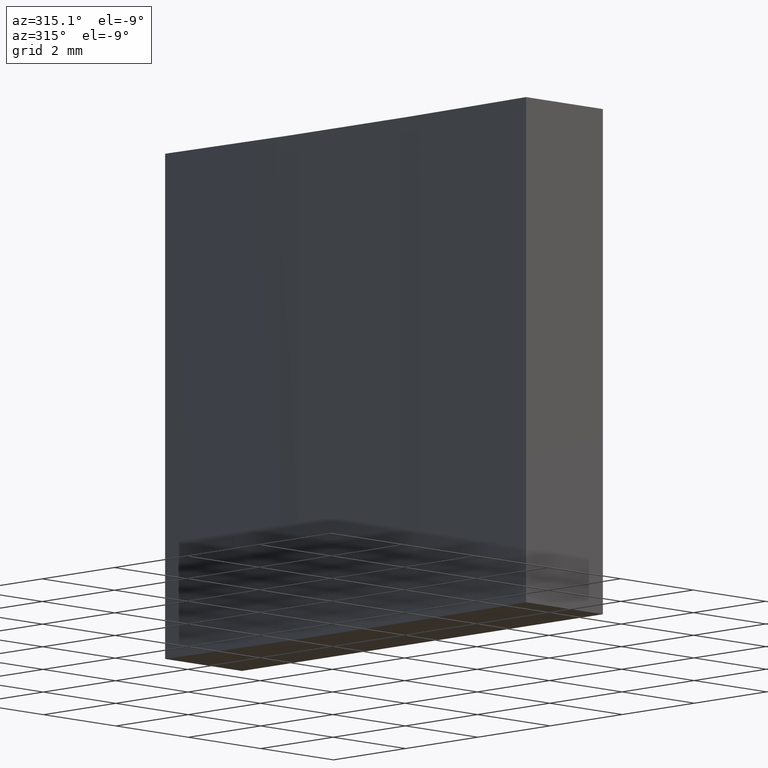
[diagram: clean part render]
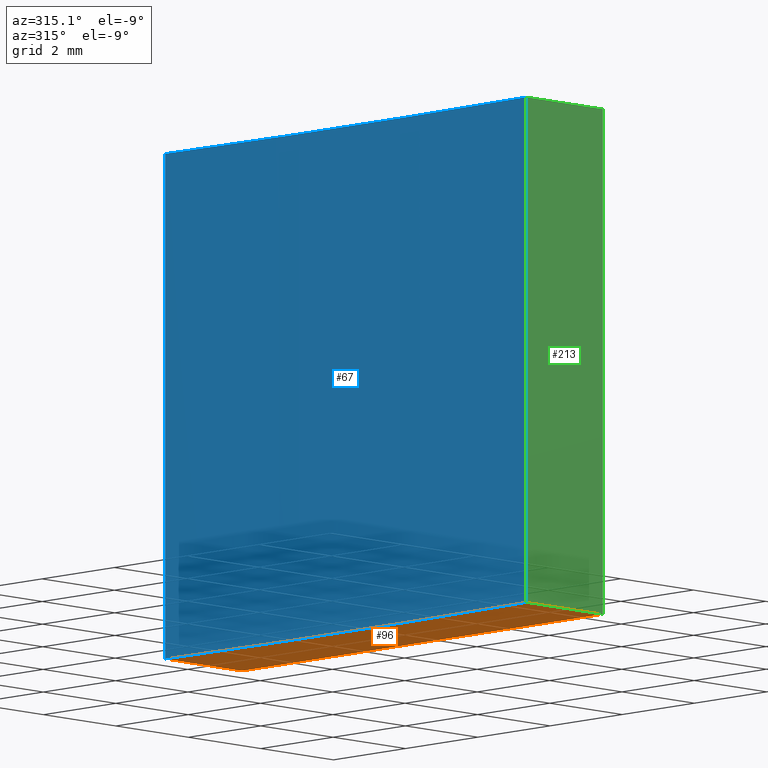
[diagram: same view with three faces highlighted in distinct colors, each labeled with its STEP entity id]
A machine part, auxiliary view with three faces highlighted in distinct colors.
Their STEP definitions:

[orange] entity #96 — the highlighted planar face has unit normal (0, 0, 1).
#2 = CARTESIAN_POINT ( 'NONE',  ( -45.55479142152581318, 13.35260716345252341, 0.000000000000000000 ) ) ;
#5 = CARTESIAN_POINT ( 'NONE',  ( 57.72424807826814686, 18.35260716345252519, 0.000000000000000000 ) ) ;
#16 = CARTESIAN_POINT ( 'NONE',  ( -45.55479142152581318, 13.35260716345252341, 0.000000000000000000 ) ) ;
#40 = DIRECTION ( 'NONE',  ( 1.000000000000000000, 0.000000000000000000, -0.000000000000000000 ) ) ;
#46 = ORIENTED_EDGE ( 'NONE', *, *, #173, .F. ) ;
#52 = PLANE ( 'NONE',  #83 ) ;
#55 = CARTESIAN_POINT ( 'NONE',  ( 57.72424807826814686, 8.352607163452523409, 0.000000000000000000 ) ) ;
#57 = CARTESIAN_POINT ( 'NONE',  ( 57.72424807826814686, 8.352607163452523409, 0.000000000000000000 ) ) ;
#77 = LINE ( 'NONE', #5, #138 ) ;
#78 = EDGE_CURVE ( 'NONE', #99, #80, #146, .T. ) ;
#80 = VERTEX_POINT ( 'NONE', #221 ) ;
#83 = AXIS2_PLACEMENT_3D ( 'NONE', #16, #108, #40 ) ;
#92 = CARTESIAN_POINT ( 'NONE',  ( 59.84424807826814430, 18.35260716345252519, 0.000000000000000000 ) ) ;
#94 = LINE ( 'NONE', #55, #154 ) ;
#96 = ADVANCED_FACE ( 'NONE', ( #204 ), #52, .F. ) ;
#97 = CARTESIAN_POINT ( 'NONE',  ( 59.84424807826814430, 8.352607163452523409, 0.000000000000000000 ) ) ;
#99 = VERTEX_POINT ( 'NONE', #97 ) ;
#101 = CARTESIAN_POINT ( 'NONE',  ( 57.72424807826814686, 18.35260716345252519, 0.000000000000000000 ) ) ;
#108 = DIRECTION ( 'NONE',  ( 0.000000000000000000, 0.000000000000000000, 1.000000000000000000 ) ) ;
#114 = VERTEX_POINT ( 'NONE', #57 ) ;
#115 = ORIENTED_EDGE ( 'NONE', *, *, #219, .F. ) ;
#129 = CIRCLE ( 'NONE', #171, 103.4000000000000057 ) ;
#136 = VERTEX_POINT ( 'NONE', #101 ) ;
#138 = VECTOR ( 'NONE', #225, 1000.000000000000000 ) ;
#139 = ORIENTED_EDGE ( 'NONE', *, *, #78, .F. ) ;
#146 = LINE ( 'NONE', #92, #164 ) ;
#154 = VECTOR ( 'NONE', #208, 1000.000000000000000 ) ;
#164 = VECTOR ( 'NONE', #239, 1000.000000000000000 ) ;
#165 = EDGE_CURVE ( 'NONE', #136, #114, #129, .T. ) ;
#171 = AXIS2_PLACEMENT_3D ( 'NONE', #2, #206, #192 ) ;
#173 = EDGE_CURVE ( 'NONE', #80, #136, #77, .T. ) ;
#192 = DIRECTION ( 'NONE',  ( 1.000000000000000000, 0.000000000000000000, 0.000000000000000000 ) ) ;
#204 = FACE_OUTER_BOUND ( 'NONE', #228, .T. ) ;
#206 = DIRECTION ( 'NONE',  ( -0.000000000000000000, -0.000000000000000000, -1.000000000000000000 ) ) ;
#208 = DIRECTION ( 'NONE',  ( 1.000000000000000000, 0.000000000000000000, 0.000000000000000000 ) ) ;
#219 = EDGE_CURVE ( 'NONE', #114, #99, #94, .T. ) ;
#221 = CARTESIAN_POINT ( 'NONE',  ( 59.84424807826814430, 18.35260716345252519, 0.000000000000000000 ) ) ;
#225 = DIRECTION ( 'NONE',  ( -1.000000000000000000, -0.000000000000000000, -0.000000000000000000 ) ) ;
#227 = ORIENTED_EDGE ( 'NONE', *, *, #165, .F. ) ;
#228 = EDGE_LOOP ( 'NONE', ( #227, #46, #139, #115 ) ) ;
#239 = DIRECTION ( 'NONE',  ( -0.000000000000000000, 1.000000000000000000, -0.000000000000000000 ) ) ;

[blue] entity #67 — the highlighted cylindrical surface (partial cylindrical patch) has radius 103.4 mm, axis along (-0, -0, -1).
#2 = CARTESIAN_POINT ( 'NONE',  ( -45.55479142152581318, 13.35260716345252341, 0.000000000000000000 ) ) ;
#8 = ORIENTED_EDGE ( 'NONE', *, *, #172, .F. ) ;
#9 = CYLINDRICAL_SURFACE ( 'NONE', #148, 103.4000000000000057 ) ;
#19 = VECTOR ( 'NONE', #180, 1000.000000000000000 ) ;
#22 = CARTESIAN_POINT ( 'NONE',  ( 57.72424807826814686, 18.35260716345252519, 10.00000000000000000 ) ) ;
#34 = DIRECTION ( 'NONE',  ( -0.000000000000000000, -0.000000000000000000, -1.000000000000000000 ) ) ;
#42 = CIRCLE ( 'NONE', #53, 103.4000000000000057 ) ;
#53 = AXIS2_PLACEMENT_3D ( 'NONE', #155, #95, #176 ) ;
#57 = CARTESIAN_POINT ( 'NONE',  ( 57.72424807826814686, 8.352607163452523409, 0.000000000000000000 ) ) ;
#63 = EDGE_CURVE ( 'NONE', #157, #136, #196, .T. ) ;
#67 = ADVANCED_FACE ( 'NONE', ( #230 ), #9, .F. ) ;
#71 = DIRECTION ( 'NONE',  ( -0.000000000000000000, -0.000000000000000000, -1.000000000000000000 ) ) ;
#81 = CARTESIAN_POINT ( 'NONE',  ( -45.55479142152581318, 13.35260716345252341, 10.00000000000000000 ) ) ;
#82 = EDGE_CURVE ( 'NONE', #210, #114, #189, .T. ) ;
#86 = ORIENTED_EDGE ( 'NONE', *, *, #63, .T. ) ;
#95 = DIRECTION ( 'NONE',  ( -0.000000000000000000, -0.000000000000000000, -1.000000000000000000 ) ) ;
#100 = CARTESIAN_POINT ( 'NONE',  ( 57.72424807826814686, 18.35260716345252519, 10.00000000000000000 ) ) ;
#101 = CARTESIAN_POINT ( 'NONE',  ( 57.72424807826814686, 18.35260716345252519, 0.000000000000000000 ) ) ;
#111 = CARTESIAN_POINT ( 'NONE',  ( 57.72424807826814686, 8.352607163452523409, 10.00000000000000000 ) ) ;
#114 = VERTEX_POINT ( 'NONE', #57 ) ;
#119 = ORIENTED_EDGE ( 'NONE', *, *, #165, .T. ) ;
#125 = CARTESIAN_POINT ( 'NONE',  ( 57.72424807826814686, 8.352607163452523409, 10.00000000000000000 ) ) ;
#129 = CIRCLE ( 'NONE', #171, 103.4000000000000057 ) ;
#136 = VERTEX_POINT ( 'NONE', #101 ) ;
#148 = AXIS2_PLACEMENT_3D ( 'NONE', #81, #34, #169 ) ;
#155 = CARTESIAN_POINT ( 'NONE',  ( -45.55479142152581318, 13.35260716345252341, 10.00000000000000000 ) ) ;
#157 = VERTEX_POINT ( 'NONE', #22 ) ;
#160 = VECTOR ( 'NONE', #71, 1000.000000000000000 ) ;
#165 = EDGE_CURVE ( 'NONE', #136, #114, #129, .T. ) ;
#169 = DIRECTION ( 'NONE',  ( -1.000000000000000000, 0.000000000000000000, 0.000000000000000000 ) ) ;
#171 = AXIS2_PLACEMENT_3D ( 'NONE', #2, #206, #192 ) ;
#172 = EDGE_CURVE ( 'NONE', #157, #210, #42, .T. ) ;
#176 = DIRECTION ( 'NONE',  ( 1.000000000000000000, 0.000000000000000000, 0.000000000000000000 ) ) ;
#180 = DIRECTION ( 'NONE',  ( -0.000000000000000000, -0.000000000000000000, -1.000000000000000000 ) ) ;
#189 = LINE ( 'NONE', #125, #160 ) ;
#192 = DIRECTION ( 'NONE',  ( 1.000000000000000000, 0.000000000000000000, 0.000000000000000000 ) ) ;
#194 = EDGE_LOOP ( 'NONE', ( #119, #234, #8, #86 ) ) ;
#196 = LINE ( 'NONE', #100, #19 ) ;
#206 = DIRECTION ( 'NONE',  ( -0.000000000000000000, -0.000000000000000000, -1.000000000000000000 ) ) ;
#210 = VERTEX_POINT ( 'NONE', #111 ) ;
#230 = FACE_OUTER_BOUND ( 'NONE', #194, .T. ) ;
#234 = ORIENTED_EDGE ( 'NONE', *, *, #82, .F. ) ;

[green] entity #213 — the highlighted planar face has unit normal (0, 1, 0).
#7 = ORIENTED_EDGE ( 'NONE', *, *, #219, .T. ) ;
#21 = DIRECTION ( 'NONE',  ( 0.000000000000000000, -0.000000000000000000, 1.000000000000000000 ) ) ;
#25 = EDGE_LOOP ( 'NONE', ( #7, #62, #179, #197 ) ) ;
#26 = LINE ( 'NONE', #137, #87 ) ;
#29 = EDGE_CURVE ( 'NONE', #210, #184, #26, .T. ) ;
#31 = AXIS2_PLACEMENT_3D ( 'NONE', #132, #224, #21 ) ;
#55 = CARTESIAN_POINT ( 'NONE',  ( 57.72424807826814686, 8.352607163452523409, 0.000000000000000000 ) ) ;
#57 = CARTESIAN_POINT ( 'NONE',  ( 57.72424807826814686, 8.352607163452523409, 0.000000000000000000 ) ) ;
#62 = ORIENTED_EDGE ( 'NONE', *, *, #151, .F. ) ;
#64 = DIRECTION ( 'NONE',  ( -0.000000000000000000, -0.000000000000000000, -1.000000000000000000 ) ) ;
#71 = DIRECTION ( 'NONE',  ( -0.000000000000000000, -0.000000000000000000, -1.000000000000000000 ) ) ;
#82 = EDGE_CURVE ( 'NONE', #210, #114, #189, .T. ) ;
#85 = CARTESIAN_POINT ( 'NONE',  ( 59.84424807826814430, 8.352607163452523409, 10.00000000000000000 ) ) ;
#87 = VECTOR ( 'NONE', #159, 1000.000000000000000 ) ;
#94 = LINE ( 'NONE', #55, #154 ) ;
#97 = CARTESIAN_POINT ( 'NONE',  ( 59.84424807826814430, 8.352607163452523409, 0.000000000000000000 ) ) ;
#99 = VERTEX_POINT ( 'NONE', #97 ) ;
#111 = CARTESIAN_POINT ( 'NONE',  ( 57.72424807826814686, 8.352607163452523409, 10.00000000000000000 ) ) ;
#114 = VERTEX_POINT ( 'NONE', #57 ) ;
#125 = CARTESIAN_POINT ( 'NONE',  ( 57.72424807826814686, 8.352607163452523409, 10.00000000000000000 ) ) ;
#126 = VECTOR ( 'NONE', #64, 1000.000000000000000 ) ;
#132 = CARTESIAN_POINT ( 'NONE',  ( 57.72424807826814686, 8.352607163452523409, 10.00000000000000000 ) ) ;
#134 = CARTESIAN_POINT ( 'NONE',  ( 59.84424807826814430, 8.352607163452523409, 10.00000000000000000 ) ) ;
#137 = CARTESIAN_POINT ( 'NONE',  ( 57.72424807826814686, 8.352607163452523409, 10.00000000000000000 ) ) ;
#151 = EDGE_CURVE ( 'NONE', #184, #99, #215, .T. ) ;
#153 = PLANE ( 'NONE',  #31 ) ;
#154 = VECTOR ( 'NONE', #208, 1000.000000000000000 ) ;
#159 = DIRECTION ( 'NONE',  ( 1.000000000000000000, 0.000000000000000000, 0.000000000000000000 ) ) ;
#160 = VECTOR ( 'NONE', #71, 1000.000000000000000 ) ;
#179 = ORIENTED_EDGE ( 'NONE', *, *, #29, .F. ) ;
#184 = VERTEX_POINT ( 'NONE', #134 ) ;
#189 = LINE ( 'NONE', #125, #160 ) ;
#191 = FACE_OUTER_BOUND ( 'NONE', #25, .T. ) ;
#197 = ORIENTED_EDGE ( 'NONE', *, *, #82, .T. ) ;
#208 = DIRECTION ( 'NONE',  ( 1.000000000000000000, 0.000000000000000000, 0.000000000000000000 ) ) ;
#210 = VERTEX_POINT ( 'NONE', #111 ) ;
#213 = ADVANCED_FACE ( 'NONE', ( #191 ), #153, .F. ) ;
#215 = LINE ( 'NONE', #85, #126 ) ;
#219 = EDGE_CURVE ( 'NONE', #114, #99, #94, .T. ) ;
#224 = DIRECTION ( 'NONE',  ( 0.000000000000000000, 1.000000000000000000, 0.000000000000000000 ) ) ;